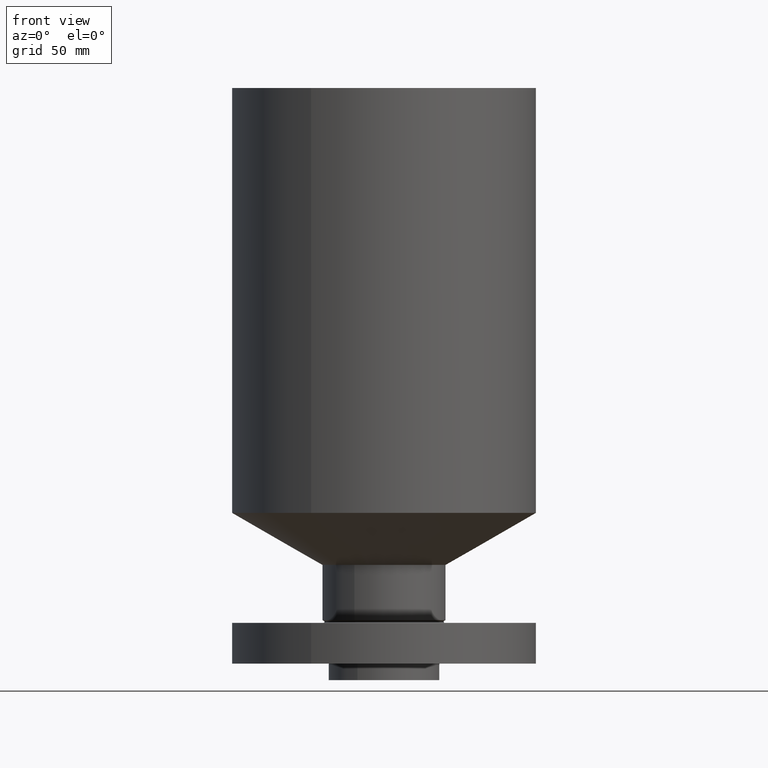
[diagram: clean part render]
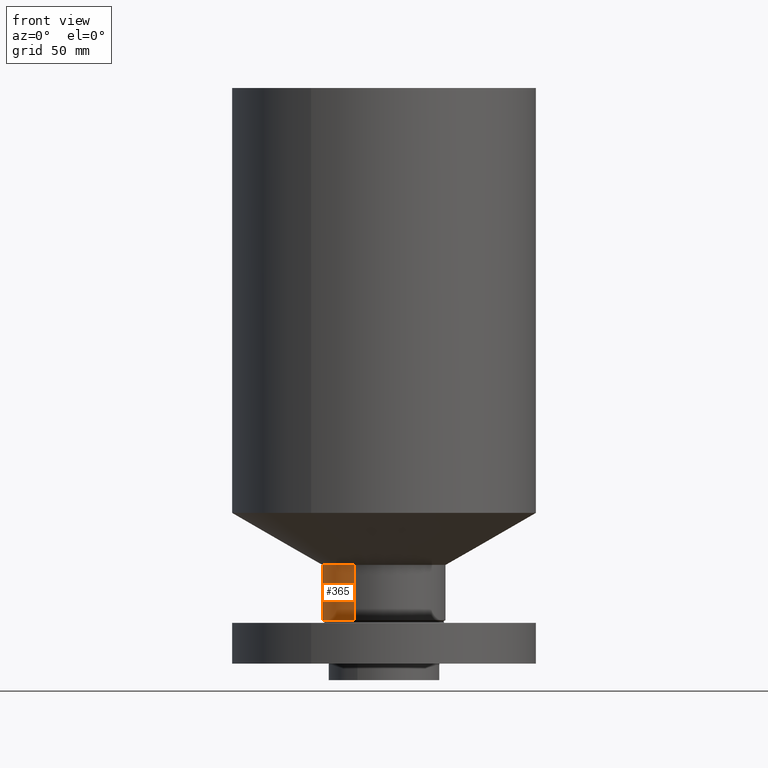
[diagram: same view with one face highlighted and labeled with its STEP entity id]
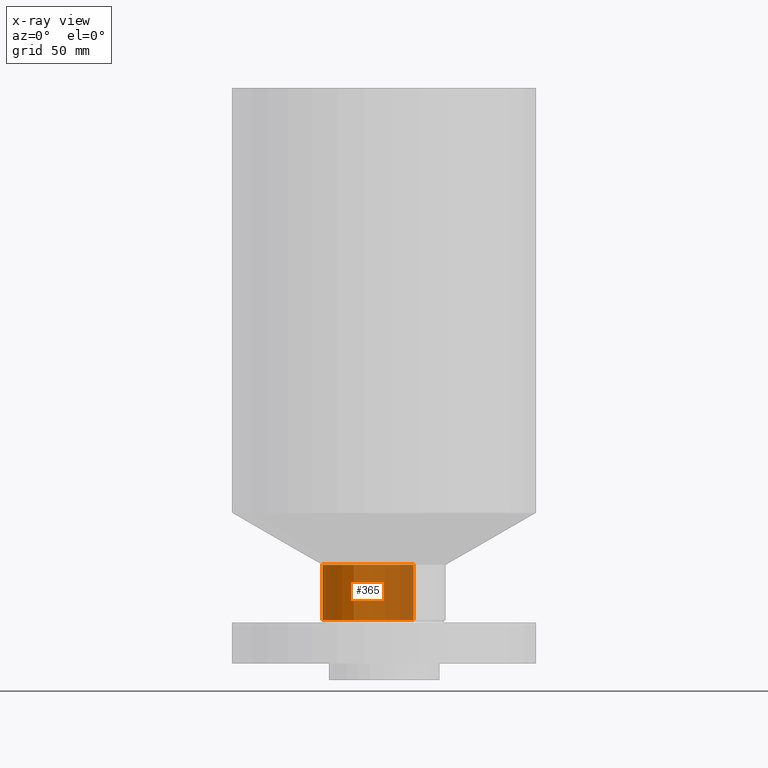
[diagram: x-ray of the same camera — body ghosted, the highlighted face saturated]
A machine part, front view. The second image highlights one B-rep face of the part: STEP entity #365.
The next image is the same camera in x-ray: the body ghosted, the highlighted face saturated — about 65% of this face is hidden behind the body in this view.
In plain terms, the highlighted cylindrical surface (partial cylindrical patch) has radius 23.876 mm, axis along (0, 0, -1).
Its self-contained STEP definition (entity closure, byte-faithful):
#313=AXIS2_PLACEMENT_3D('Circle Axis2P3D',#311,#312,$) ;
#326=AXIS2_PLACEMENT_3D('Cylinder Axis2P3D',#323,#324,#325) ;
#356=AXIS2_PLACEMENT_3D('Circle Axis2P3D',#354,#355,$) ;
#289=CARTESIAN_POINT('Vertex',(0.45066000629,0.82492760818,0.660980762116)) ;
#296=CARTESIAN_POINT('Vertex',(-0.45066000629,-0.82492760818,0.660980762116)) ;
#311=CARTESIAN_POINT('Axis2P3D Location',(0.,0.,0.660980762116)) ;
#323=CARTESIAN_POINT('Axis2P3D Location',(0.,0.,4.25000000002)) ;
#328=CARTESIAN_POINT('Line Origine',(0.45066000629,0.82492760818,1.08049038106)) ;
#332=CARTESIAN_POINT('Vertex',(0.45066000629,0.82492760818,1.50000000001)) ;
#339=CARTESIAN_POINT('Vertex',(-0.45066000629,-0.82492760818,1.50000000001)) ;
#342=CARTESIAN_POINT('Line Origine',(-0.45066000629,-0.82492760818,1.08049038106)) ;
#354=CARTESIAN_POINT('Axis2P3D Location',(0.,0.,1.50000000001)) ;
#312=DIRECTION('Axis2P3D Direction',(-0.,0.,0.0393700787402)) ;
#324=DIRECTION('Axis2P3D Direction',(0.,0.,-0.0393700787402)) ;
#325=DIRECTION('Axis2P3D XDirection',(-0.0188750212049,-0.0345504945626,0.)) ;
#329=DIRECTION('Vector Direction',(0.,0.,-0.0393700787402)) ;
#343=DIRECTION('Vector Direction',(0.,0.,-0.0393700787402)) ;
#355=DIRECTION('Axis2P3D Direction',(0.,0.,-0.0393700787402)) ;
#330=VECTOR('Line Direction',#329,0.0393700787402) ;
#344=VECTOR('Line Direction',#343,0.0393700787402) ;
#360=ORIENTED_EDGE('',*,*,#315,.F.) ;
#361=ORIENTED_EDGE('',*,*,#346,.T.) ;
#362=ORIENTED_EDGE('',*,*,#358,.T.) ;
#363=ORIENTED_EDGE('',*,*,#334,.F.) ;
#365=ADVANCED_FACE('PartBody',(#364),#327,.T.) ;
#314=CIRCLE('generated circle',#313,0.940000000004) ;
#357=CIRCLE('generated circle',#356,0.940000000004) ;
#327=CYLINDRICAL_SURFACE('generated cylinder',#326,0.940000000004) ;
#315=EDGE_CURVE('',#297,#290,#314,.F.) ;
#334=EDGE_CURVE('',#290,#333,#331,.F.) ;
#346=EDGE_CURVE('',#297,#340,#345,.F.) ;
#358=EDGE_CURVE('',#340,#333,#357,.T.) ;
#359=EDGE_LOOP('',(#360,#361,#362,#363)) ;
#364=FACE_OUTER_BOUND('',#359,.T.) ;
#331=LINE('Line',#328,#330) ;
#345=LINE('Line',#342,#344) ;
#290=VERTEX_POINT('',#289) ;
#297=VERTEX_POINT('',#296) ;
#333=VERTEX_POINT('',#332) ;
#340=VERTEX_POINT('',#339) ;